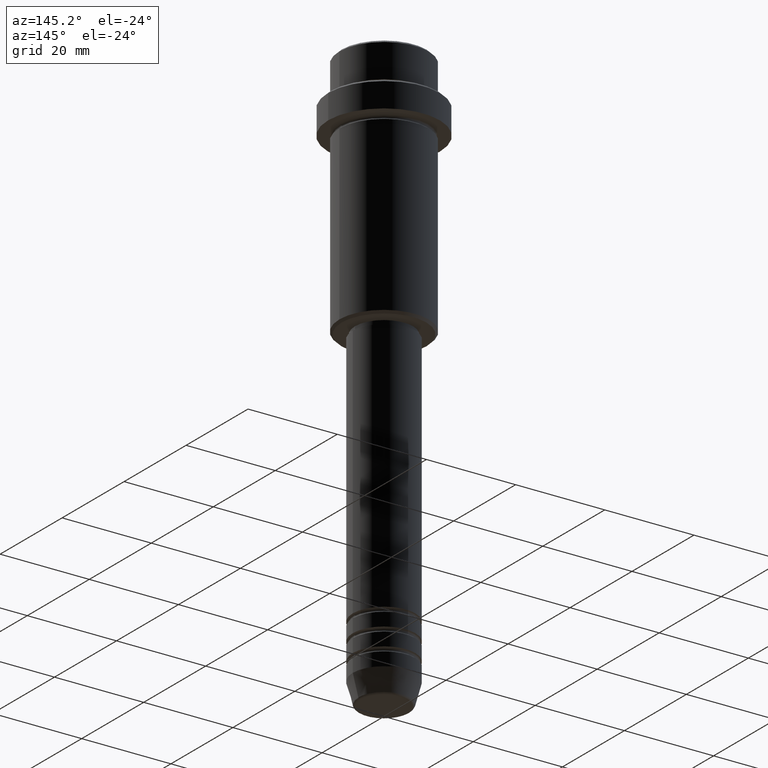
[diagram: clean part render]
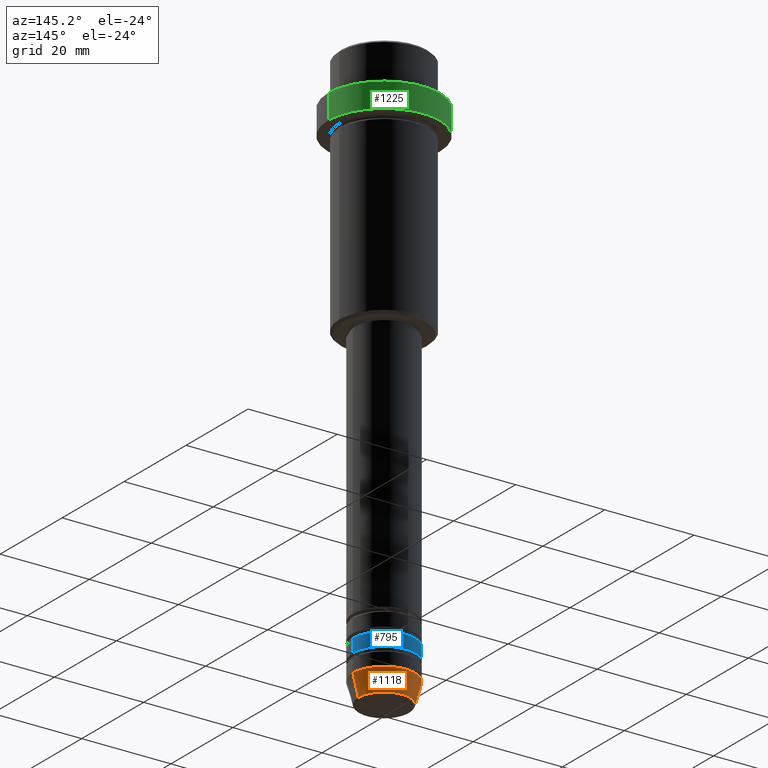
[diagram: same view with three faces highlighted in distinct colors, each labeled with its STEP entity id]
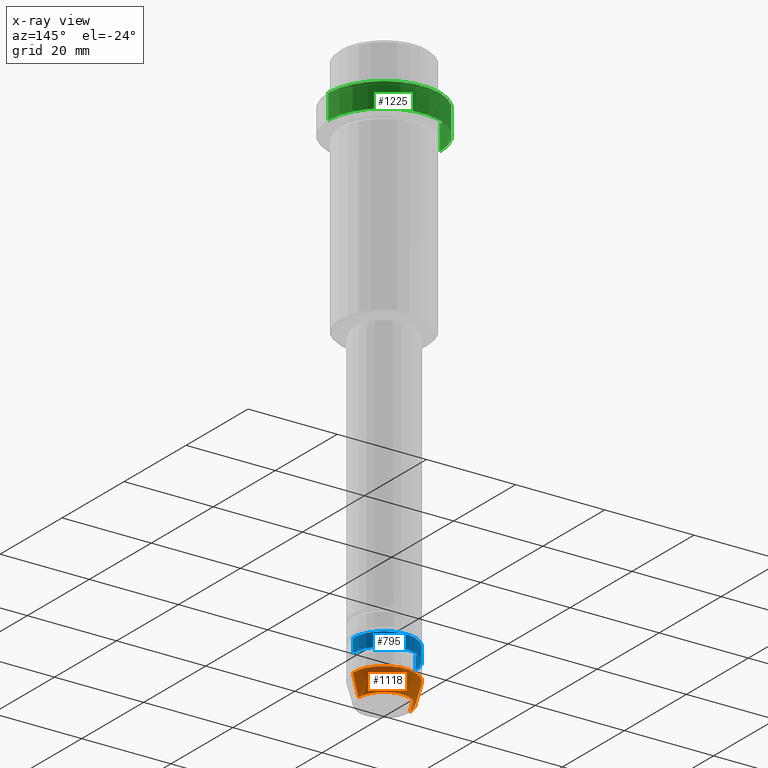
[diagram: x-ray of the same camera — body ghosted, the three highlighted faces saturated]
A machine part, auxiliary view with three faces highlighted in distinct colors.
The next image is the same camera in x-ray (body ghosted, the three faces saturated) — at least one of them is partly hidden behind the body in this view.
Their STEP definitions:

[orange] entity #1118 — the highlighted conical surface has half-angle 15 deg.
#7 = DIRECTION ( 'NONE',  ( -0.000000000000000000, -0.000000000000000000, 1.000000000000000000 ) ) ;
#42 = CARTESIAN_POINT ( 'NONE',  ( -5.759553456999435994, 7.812973149831951773E-16, -129.6294095225512422 ) ) ;
#47 = EDGE_LOOP ( 'NONE', ( #949, #566, #789, #369 ) ) ;
#52 = CARTESIAN_POINT ( 'NONE',  ( 0.000000000000000000, 0.000000000000000000, -129.6294095225512422 ) ) ;
#78 = VECTOR ( 'NONE', #727, 1000.000000000000000 ) ;
#171 = DIRECTION ( 'NONE',  ( -0.000000000000000000, -0.000000000000000000, 1.000000000000000000 ) ) ;
#182 = CARTESIAN_POINT ( 'NONE',  ( 7.000000000000000000, 0.000000000000000000, -125.0000000000000000 ) ) ;
#226 = DIRECTION ( 'NONE',  ( 0.2588190451025213501, 0.000000000000000000, 0.9659258262890680902 ) ) ;
#333 = FACE_OUTER_BOUND ( 'NONE', #47, .T. ) ;
#339 = CIRCLE ( 'NONE', #677, 7.000000000000000000 ) ;
#369 = ORIENTED_EDGE ( 'NONE', *, *, #733, .F. ) ;
#390 = EDGE_CURVE ( 'NONE', #416, #1189, #1395, .T. ) ;
#407 = DIRECTION ( 'NONE',  ( 1.000000000000000000, 0.000000000000000000, 0.000000000000000000 ) ) ;
#416 = VERTEX_POINT ( 'NONE', #1259 ) ;
#439 = DIRECTION ( 'NONE',  ( 1.000000000000000000, 0.000000000000000000, 0.000000000000000000 ) ) ;
#525 = CONICAL_SURFACE ( 'NONE', #1322, 7.000000000000000000, 0.2617993877991500740 ) ;
#540 = DIRECTION ( 'NONE',  ( -0.000000000000000000, -0.000000000000000000, 1.000000000000000000 ) ) ;
#564 = CARTESIAN_POINT ( 'NONE',  ( 0.000000000000000000, 0.000000000000000000, -125.0000000000000000 ) ) ;
#566 = ORIENTED_EDGE ( 'NONE', *, *, #1357, .T. ) ;
#632 = AXIS2_PLACEMENT_3D ( 'NONE', #52, #171, #407 ) ;
#677 = AXIS2_PLACEMENT_3D ( 'NONE', #1317, #540, #439 ) ;
#727 = DIRECTION ( 'NONE',  ( -0.2588190451025213501, 3.169619151431772337E-17, 0.9659258262890680902 ) ) ;
#731 = LINE ( 'NONE', #1269, #78 ) ;
#733 = EDGE_CURVE ( 'NONE', #416, #1000, #752, .T. ) ;
#749 = DIRECTION ( 'NONE',  ( 1.000000000000000000, 0.000000000000000000, 0.000000000000000000 ) ) ;
#752 = LINE ( 'NONE', #1188, #1185 ) ;
#789 = ORIENTED_EDGE ( 'NONE', *, *, #1116, .F. ) ;
#820 = CARTESIAN_POINT ( 'NONE',  ( -7.000000000000000000, 8.572527594031473190E-16, -125.0000000000000000 ) ) ;
#949 = ORIENTED_EDGE ( 'NONE', *, *, #390, .T. ) ;
#1000 = VERTEX_POINT ( 'NONE', #182 ) ;
#1116 = EDGE_CURVE ( 'NONE', #1000, #1379, #339, .T. ) ;
#1118 = ADVANCED_FACE ( 'NONE', ( #333 ), #525, .T. ) ;
#1185 = VECTOR ( 'NONE', #226, 1000.000000000000000 ) ;
#1188 = CARTESIAN_POINT ( 'NONE',  ( 7.000000000000000000, 0.000000000000000000, -125.0000000000000000 ) ) ;
#1189 = VERTEX_POINT ( 'NONE', #42 ) ;
#1259 = CARTESIAN_POINT ( 'NONE',  ( 5.759553456999435994, 0.000000000000000000, -129.6294095225512422 ) ) ;
#1269 = CARTESIAN_POINT ( 'NONE',  ( -7.000000000000000000, 8.572527594031473190E-16, -125.0000000000000000 ) ) ;
#1317 = CARTESIAN_POINT ( 'NONE',  ( 0.000000000000000000, 0.000000000000000000, -125.0000000000000000 ) ) ;
#1322 = AXIS2_PLACEMENT_3D ( 'NONE', #564, #7, #749 ) ;
#1357 = EDGE_CURVE ( 'NONE', #1189, #1379, #731, .T. ) ;
#1379 = VERTEX_POINT ( 'NONE', #820 ) ;
#1395 = CIRCLE ( 'NONE', #632, 5.759553456999435994 ) ;

[blue] entity #795 — the highlighted cylindrical surface (partial cylindrical patch) has radius 7 mm, axis along (-0, -0, 1).
#31 = EDGE_CURVE ( 'NONE', #1295, #1034, #573, .T. ) ;
#85 = ORIENTED_EDGE ( 'NONE', *, *, #31, .F. ) ;
#86 = DIRECTION ( 'NONE',  ( -0.000000000000000000, -0.000000000000000000, 1.000000000000000000 ) ) ;
#127 = DIRECTION ( 'NONE',  ( 1.000000000000000000, 0.000000000000000000, 0.000000000000000000 ) ) ;
#172 = VECTOR ( 'NONE', #244, 1000.000000000000000 ) ;
#244 = DIRECTION ( 'NONE',  ( -0.000000000000000000, -0.000000000000000000, 1.000000000000000000 ) ) ;
#256 = CYLINDRICAL_SURFACE ( 'NONE', #838, 7.000000000000000000 ) ;
#306 = VERTEX_POINT ( 'NONE', #1002 ) ;
#350 = DIRECTION ( 'NONE',  ( 1.000000000000000000, 0.000000000000000000, 0.000000000000000000 ) ) ;
#421 = CARTESIAN_POINT ( 'NONE',  ( -7.000000000000000000, 8.572527594031473190E-16, 0.000000000000000000 ) ) ;
#482 = EDGE_LOOP ( 'NONE', ( #928, #1307, #1050, #85 ) ) ;
#493 = CIRCLE ( 'NONE', #615, 7.000000000000000000 ) ;
#548 = CIRCLE ( 'NONE', #938, 7.000000000000000000 ) ;
#573 = LINE ( 'NONE', #1226, #172 ) ;
#582 = EDGE_CURVE ( 'NONE', #306, #1239, #953, .T. ) ;
#615 = AXIS2_PLACEMENT_3D ( 'NONE', #644, #1102, #1218 ) ;
#640 = EDGE_CURVE ( 'NONE', #1034, #1239, #493, .T. ) ;
#644 = CARTESIAN_POINT ( 'NONE',  ( 0.000000000000000000, 0.000000000000000000, -117.9999999999998863 ) ) ;
#724 = VECTOR ( 'NONE', #86, 1000.000000000000000 ) ;
#795 = ADVANCED_FACE ( 'NONE', ( #1215 ), #256, .T. ) ;
#838 = AXIS2_PLACEMENT_3D ( 'NONE', #1192, #999, #127 ) ;
#906 = CARTESIAN_POINT ( 'NONE',  ( -7.000000000000000000, 8.572527594031473190E-16, -117.9999999999998863 ) ) ;
#928 = ORIENTED_EDGE ( 'NONE', *, *, #1093, .T. ) ;
#938 = AXIS2_PLACEMENT_3D ( 'NONE', #1068, #1406, #350 ) ;
#953 = LINE ( 'NONE', #421, #724 ) ;
#999 = DIRECTION ( 'NONE',  ( -0.000000000000000000, -0.000000000000000000, 1.000000000000000000 ) ) ;
#1002 = CARTESIAN_POINT ( 'NONE',  ( -7.000000000000000000, 8.572527594031473190E-16, -120.9999999999998579 ) ) ;
#1034 = VERTEX_POINT ( 'NONE', #1287 ) ;
#1050 = ORIENTED_EDGE ( 'NONE', *, *, #640, .F. ) ;
#1068 = CARTESIAN_POINT ( 'NONE',  ( 0.000000000000000000, 0.000000000000000000, -120.9999999999998579 ) ) ;
#1093 = EDGE_CURVE ( 'NONE', #1295, #306, #548, .T. ) ;
#1102 = DIRECTION ( 'NONE',  ( -0.000000000000000000, -0.000000000000000000, 1.000000000000000000 ) ) ;
#1192 = CARTESIAN_POINT ( 'NONE',  ( 0.000000000000000000, 0.000000000000000000, 0.000000000000000000 ) ) ;
#1215 = FACE_OUTER_BOUND ( 'NONE', #482, .T. ) ;
#1218 = DIRECTION ( 'NONE',  ( 1.000000000000000000, 0.000000000000000000, 0.000000000000000000 ) ) ;
#1226 = CARTESIAN_POINT ( 'NONE',  ( 7.000000000000000000, 0.000000000000000000, 0.000000000000000000 ) ) ;
#1239 = VERTEX_POINT ( 'NONE', #906 ) ;
#1287 = CARTESIAN_POINT ( 'NONE',  ( 7.000000000000000000, 0.000000000000000000, -117.9999999999998863 ) ) ;
#1295 = VERTEX_POINT ( 'NONE', #1360 ) ;
#1307 = ORIENTED_EDGE ( 'NONE', *, *, #582, .T. ) ;
#1360 = CARTESIAN_POINT ( 'NONE',  ( 7.000000000000000000, 0.000000000000000000, -120.9999999999998579 ) ) ;
#1406 = DIRECTION ( 'NONE',  ( -0.000000000000000000, -0.000000000000000000, 1.000000000000000000 ) ) ;

[green] entity #1225 — the highlighted cylindrical surface (partial cylindrical patch) has radius 12.5 mm, axis along (-0, -0, 1).
#1 = CIRCLE ( 'NONE', #1205, 12.50000000000000000 ) ;
#5 = AXIS2_PLACEMENT_3D ( 'NONE', #1235, #696, #813 ) ;
#25 = AXIS2_PLACEMENT_3D ( 'NONE', #383, #1127, #790 ) ;
#51 = ORIENTED_EDGE ( 'NONE', *, *, #69, .T. ) ;
#57 = CARTESIAN_POINT ( 'NONE',  ( -12.50000000000000000, 1.530808498934191521E-15, -15.00000000000000178 ) ) ;
#69 = EDGE_CURVE ( 'NONE', #1343, #401, #512, .T. ) ;
#189 = ORIENTED_EDGE ( 'NONE', *, *, #835, .T. ) ;
#201 = VERTEX_POINT ( 'NONE', #379 ) ;
#211 = CARTESIAN_POINT ( 'NONE',  ( -12.50000000000000000, 1.530808498934191521E-15, 0.000000000000000000 ) ) ;
#249 = CIRCLE ( 'NONE', #5, 12.50000000000000000 ) ;
#315 = DIRECTION ( 'NONE',  ( -0.000000000000000000, -0.000000000000000000, 1.000000000000000000 ) ) ;
#379 = CARTESIAN_POINT ( 'NONE',  ( 12.50000000000000000, 0.000000000000000000, -9.499999999999978684 ) ) ;
#383 = CARTESIAN_POINT ( 'NONE',  ( 0.000000000000000000, 0.000000000000000000, 0.000000000000000000 ) ) ;
#401 = VERTEX_POINT ( 'NONE', #1117 ) ;
#426 = DIRECTION ( 'NONE',  ( 0.000000000000000000, 0.000000000000000000, -1.000000000000000000 ) ) ;
#433 = DIRECTION ( 'NONE',  ( 1.000000000000000000, 0.000000000000000000, 0.000000000000000000 ) ) ;
#512 = LINE ( 'NONE', #211, #526 ) ;
#526 = VECTOR ( 'NONE', #1057, 1000.000000000000000 ) ;
#541 = EDGE_CURVE ( 'NONE', #1141, #201, #829, .T. ) ;
#584 = CYLINDRICAL_SURFACE ( 'NONE', #25, 12.50000000000000000 ) ;
#589 = EDGE_CURVE ( 'NONE', #401, #201, #1, .T. ) ;
#696 = DIRECTION ( 'NONE',  ( -0.000000000000000000, -0.000000000000000000, 1.000000000000000000 ) ) ;
#721 = CARTESIAN_POINT ( 'NONE',  ( 0.000000000000000000, 0.000000000000000000, -9.499999999999978684 ) ) ;
#790 = DIRECTION ( 'NONE',  ( 1.000000000000000000, 0.000000000000000000, 0.000000000000000000 ) ) ;
#813 = DIRECTION ( 'NONE',  ( 1.000000000000000000, 0.000000000000000000, 0.000000000000000000 ) ) ;
#829 = LINE ( 'NONE', #962, #863 ) ;
#835 = EDGE_CURVE ( 'NONE', #1141, #1343, #249, .T. ) ;
#863 = VECTOR ( 'NONE', #315, 1000.000000000000000 ) ;
#911 = ORIENTED_EDGE ( 'NONE', *, *, #589, .T. ) ;
#962 = CARTESIAN_POINT ( 'NONE',  ( 12.50000000000000000, 0.000000000000000000, 0.000000000000000000 ) ) ;
#1010 = FACE_OUTER_BOUND ( 'NONE', #1121, .T. ) ;
#1057 = DIRECTION ( 'NONE',  ( -0.000000000000000000, -0.000000000000000000, 1.000000000000000000 ) ) ;
#1117 = CARTESIAN_POINT ( 'NONE',  ( -12.50000000000000000, 1.530808498934191521E-15, -9.499999999999978684 ) ) ;
#1121 = EDGE_LOOP ( 'NONE', ( #189, #51, #911, #1263 ) ) ;
#1127 = DIRECTION ( 'NONE',  ( -0.000000000000000000, -0.000000000000000000, 1.000000000000000000 ) ) ;
#1141 = VERTEX_POINT ( 'NONE', #1191 ) ;
#1191 = CARTESIAN_POINT ( 'NONE',  ( 12.50000000000000000, 0.000000000000000000, -15.00000000000000178 ) ) ;
#1205 = AXIS2_PLACEMENT_3D ( 'NONE', #721, #426, #433 ) ;
#1225 = ADVANCED_FACE ( 'NONE', ( #1010 ), #584, .T. ) ;
#1235 = CARTESIAN_POINT ( 'NONE',  ( 0.000000000000000000, 0.000000000000000000, -15.00000000000000178 ) ) ;
#1263 = ORIENTED_EDGE ( 'NONE', *, *, #541, .F. ) ;
#1343 = VERTEX_POINT ( 'NONE', #57 ) ;